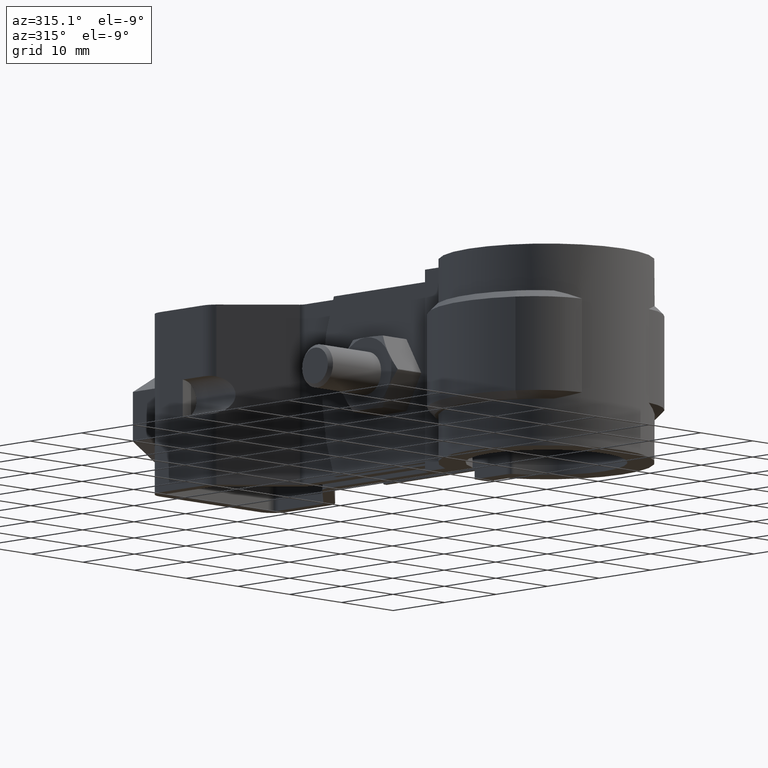
[diagram: clean part render]
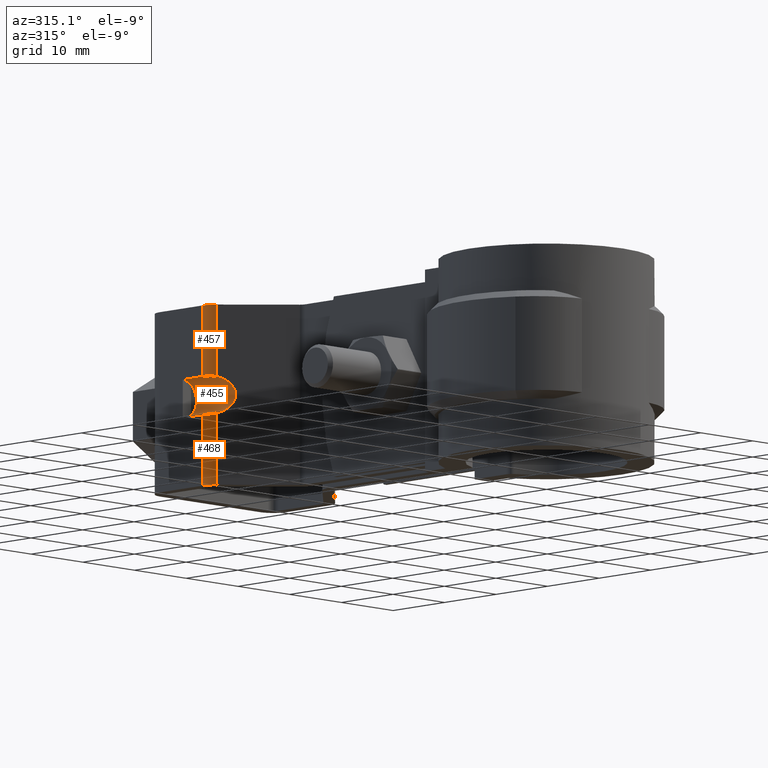
[diagram: same view with one multi-face feature highlighted, each face labeled with its STEP entity id]
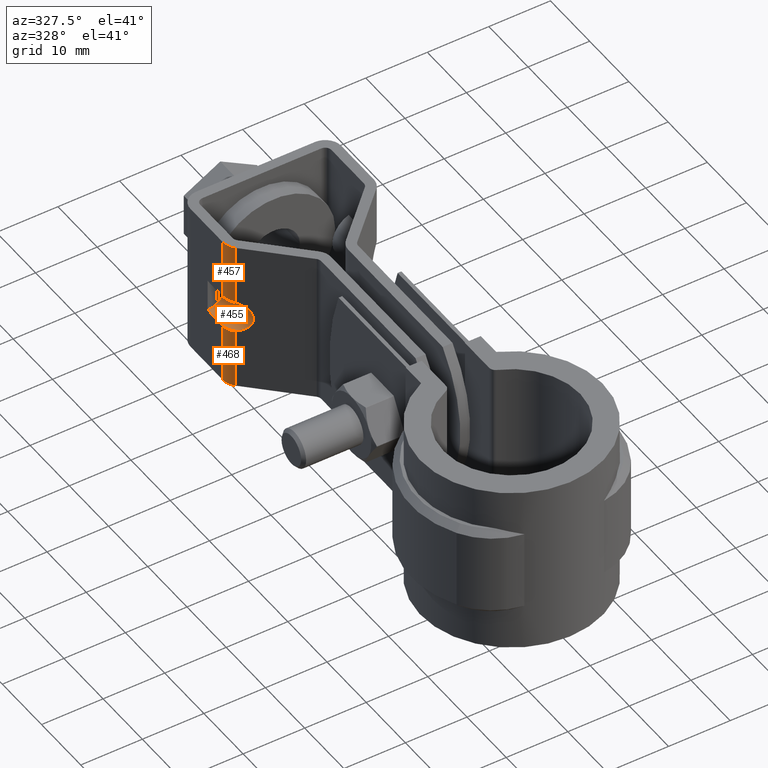
[diagram: same view with one multi-face feature highlighted, each face labeled with its STEP entity id]
A machine part, auxiliary view. The highlighted faces form ONE feature: a constant-radius fillet chain: 3 tangent blend faces with common blend radius 2.61667 mm. The faces share edges in the B-rep.
A second angle (auxiliary view) of the same feature is appended — it is thin or edge-on in the first view.
Their STEP definitions:
[1] entity #455 (Cylinder):
#455 = ADVANCED_FACE( '', ( #815 ), #816, .F. );
#815 = FACE_OUTER_BOUND( '', #1644, .T. );
#816 = CYLINDRICAL_SURFACE( '', #1645, 2.64999999999997 );
#1644 = EDGE_LOOP( '', ( #3950, #3951, #3952, #3953, #3954, #3955, #3956, #3957 ) );
#1645 = AXIS2_PLACEMENT_3D( '', #3958, #3959, #3960 );
#3950 = ORIENTED_EDGE( '', *, *, #4907, .T. );
#3951 = ORIENTED_EDGE( '', *, *, #4908, .T. );
#3952 = ORIENTED_EDGE( '', *, *, #4909, .T. );
#3953 = ORIENTED_EDGE( '', *, *, #4910, .F. );
#3954 = ORIENTED_EDGE( '', *, *, #4905, .F. );
#3955 = ORIENTED_EDGE( '', *, *, #4911, .F. );
#3956 = ORIENTED_EDGE( '', *, *, #4912, .F. );
#3957 = ORIENTED_EDGE( '', *, *, #4913, .T. );
#3958 = CARTESIAN_POINT( '', ( -12.2499999998243, 48.2980146710182, -12.4999999884850 ) );
#3959 = DIRECTION( '', ( -8.53589041478956E-013, -1.00000000000000, -9.34504695848685E-011 ) );
#3960 = DIRECTION( '', ( -7.44484596428682E-013, -9.34504695848679E-011, 1.00000000000000 ) );
#4905 = EDGE_CURVE( '', #5774, #5776, #5777, .T. );
#4907 = EDGE_CURVE( '', #5779, #5780, #5781, .T. );
#4908 = EDGE_CURVE( '', #5780, #5782, #5783, .T. );
#4909 = EDGE_CURVE( '', #5782, #5784, #5785, .T. );
#4910 = EDGE_CURVE( '', #5776, #5784, #5786, .T. );
#4911 = EDGE_CURVE( '', #5787, #5774, #5788, .T. );
#4912 = EDGE_CURVE( '', #5789, #5787, #5790, .T. );
#4913 = EDGE_CURVE( '', #5789, #5779, #5791, .T. );
#5774 = VERTEX_POINT( '', #8309 );
#5776 = VERTEX_POINT( '', #8312 );
#5777 = CIRCLE( '', #8313, 2.64999999999997 );
#5779 = VERTEX_POINT( '', #8316 );
#5780 = VERTEX_POINT( '', #8317 );
#5781 = ELLIPSE( '', #8318, 3.70224472166266, 2.64999999999997 );
#5782 = VERTEX_POINT( '', #8319 );
#5783 = B_SPLINE_CURVE_WITH_KNOTS( '', 3, ( #8320, #8321, #8322, #8323, #8324, #8325, #8326, #8327 ), .UNSPECIFIED., .F., .F., ( 4, 2, 2, 4 ), ( 1.73472347597681E-018, 0.000516787748161293, 0.00103357549632258, 0.00206715099264518 ), .UNSPECIFIED. );
#5784 = VERTEX_POINT( '', #8328 );
#5785 = LINE( '', #8329, #8330 );
#5786 = CIRCLE( '', #8331, 2.64999999999997 );
#5787 = VERTEX_POINT( '', #8332 );
#5788 = CIRCLE( '', #8333, 2.64999999999997 );
#5789 = VERTEX_POINT( '', #8334 );
#5790 = LINE( '', #8335, #8336 );
#5791 = B_SPLINE_CURVE_WITH_KNOTS( '', 3, ( #8337, #8338, #8339, #8340, #8341, #8342, #8343, #8344, #8345, #8346 ), .UNSPECIFIED., .F., .F., ( 4, 2, 2, 2, 4 ), ( 0.000000000000000, 0.000517346174284566, 0.00103469234856913, 0.00155203852285370, 0.00206938469713826 ), .UNSPECIFIED. );
#8309 = CARTESIAN_POINT( '', ( -10.6499999998142, 58.2980146712143, -14.6124630049771 ) );
#8312 = CARTESIAN_POINT( '', ( -10.6499999998174, 58.2980146708194, -10.3875369701215 ) );
#8313 = AXIS2_PLACEMENT_3D( '', #9282, #9283, #9284 );
#8316 = CARTESIAN_POINT( '', ( -11.4656419721980, 52.5327873626204, -15.0312610343869 ) );
#8317 = CARTESIAN_POINT( '', ( -11.4656419722019, 52.5327873621473, -9.96873894179046 ) );
#8318 = AXIS2_PLACEMENT_3D( '', #9286, #9287, #9288 );
#8319 = CARTESIAN_POINT( '', ( -12.2499999998211, 54.3938204698849, -9.84999998791540 ) );
#8320 = CARTESIAN_POINT( '', ( -11.4656419722019, 52.5327873621473, -9.96873894179044 ) );
#8321 = CARTESIAN_POINT( '', ( -11.5880007592536, 52.6521617830155, -9.93082380970943 ) );
#8322 = CARTESIAN_POINT( '', ( -11.6979909724040, 52.7828607483827, -9.90626131825559 ) );
#8323 = CARTESIAN_POINT( '', ( -11.8919852998658, 53.0660553692449, -9.87244984993833 ) );
#8324 = CARTESIAN_POINT( '', ( -11.9765770455680, 53.2203805677772, -9.86327472014186 ) );
#8325 = CARTESIAN_POINT( '', ( -12.1789956023336, 53.6982134996160, -9.84749562863240 ) );
#8326 = CARTESIAN_POINT( '', ( -12.2499999998214, 54.0442786278377, -9.84999998794807 ) );
#8327 = CARTESIAN_POINT( '', ( -12.2499999998211, 54.3938204698849, -9.84999998791540 ) );
#8328 = CARTESIAN_POINT( '', ( -12.2499999998178, 58.2980146707706, -9.84999998755055 ) );
#8329 = CARTESIAN_POINT( '', ( -12.2499999998263, 48.2980146707706, -9.84999998848506 ) );
#8330 = VECTOR( '', #9289, 1000.00000000000 );
#8331 = AXIS2_PLACEMENT_3D( '', #9290, #9291, #9292 );
#8332 = CARTESIAN_POINT( '', ( -12.2499999998137, 58.2980146712659, -15.1499999875505 ) );
#8333 = AXIS2_PLACEMENT_3D( '', #9293, #9294, #9295 );
#8334 = CARTESIAN_POINT( '', ( -12.2499999998171, 54.3938204703802, -15.1499999879153 ) );
#8335 = CARTESIAN_POINT( '', ( -12.2499999998223, 48.2980146712658, -15.1499999884850 ) );
#8336 = VECTOR( '', #9296, 1000.00000000000 );
#8337 = CARTESIAN_POINT( '', ( -12.2499999998171, 54.3938204703802, -15.1499999879153 ) );
#8338 = CARTESIAN_POINT( '', ( -12.2499999998172, 54.2189304061320, -15.1499999879317 ) );
#8339 = CARTESIAN_POINT( '', ( -12.2325330352256, 54.0469879982264, -15.1501636839525 ) );
#8340 = CARTESIAN_POINT( '', ( -12.1640563522652, 53.7087728082181, -15.1488273511570 ) );
#8341 = CARTESIAN_POINT( '', ( -12.1121297115208, 53.5406419599359, -15.1472759408597 ) );
#8342 = CARTESIAN_POINT( '', ( -11.9772119359029, 53.2216085047010, -15.1367906242331 ) );
#8343 = CARTESIAN_POINT( '', ( -11.8947254702792, 53.0705972853488, -15.1279277715214 ) );
#8344 = CARTESIAN_POINT( '', ( -11.7003962034676, 52.7858442755270, -15.0942551978655 ) );
#8345 = CARTESIAN_POINT( '', ( -11.5880224296767, 52.6521829253748, -15.0691828814282 ) );
#8346 = CARTESIAN_POINT( '', ( -11.4656419721980, 52.5327873626204, -15.0312610343869 ) );
#9282 = CARTESIAN_POINT( '', ( -12.2499999998157, 58.2980146710182, -12.4999999875505 ) );
#9283 = DIRECTION( '', ( -8.53589041478956E-013, -1.00000000000000, -9.34504695848685E-011 ) );
#9284 = DIRECTION( '', ( -7.66086813299337E-013, -9.34504695848679E-011, 1.00000000000000 ) );
#9286 = CARTESIAN_POINT( '', ( -12.2499999998200, 53.2980146710184, -12.4999999880178 ) );
#9287 = DIRECTION( '', ( -0.698323835531110, -0.715781964517911, -6.74247207665490E-011 ) );
#9288 = DIRECTION( '', ( -0.715781964517911, 0.698323835531110, 6.47107662638313E-011 ) );
#9289 = DIRECTION( '', ( 8.53589041478956E-013, 1.00000000000000, 9.34504695848685E-011 ) );
#9290 = CARTESIAN_POINT( '', ( -12.2499999998157, 58.2980146710182, -12.4999999875505 ) );
#9291 = DIRECTION( '', ( -8.53589041478956E-013, -1.00000000000000, -9.34504695848685E-011 ) );
#9292 = DIRECTION( '', ( -7.66086813299337E-013, -9.34504695848679E-011, 1.00000000000000 ) );
#9293 = CARTESIAN_POINT( '', ( -12.2499999998157, 58.2980146710182, -12.4999999875505 ) );
#9294 = DIRECTION( '', ( -8.53589041478956E-013, -1.00000000000000, -9.34504695848685E-011 ) );
#9295 = DIRECTION( '', ( -7.66086813299337E-013, -9.34504695848679E-011, 1.00000000000000 ) );
#9296 = DIRECTION( '', ( 8.53589041478956E-013, 1.00000000000000, 9.34504695848685E-011 ) );
[2] entity #457 (Cylinder):
#457 = ADVANCED_FACE( '', ( #819 ), #820, .T. );
#819 = FACE_OUTER_BOUND( '', #1648, .T. );
#820 = CYLINDRICAL_SURFACE( '', #1649, 2.59999999999999 );
#1648 = EDGE_LOOP( '', ( #3968, #3969, #3970, #3971 ) );
#1649 = AXIS2_PLACEMENT_3D( '', #3972, #3973, #3974 );
#3968 = ORIENTED_EDGE( '', *, *, #4916, .T. );
#3969 = ORIENTED_EDGE( '', *, *, #4908, .F. );
#3970 = ORIENTED_EDGE( '', *, *, #4917, .F. );
#3971 = ORIENTED_EDGE( '', *, *, #4835, .T. );
#3972 = CARTESIAN_POINT( '', ( -9.64999999982868, 54.3938204689623, 1.20866094910355E-008 ) );
#3973 = DIRECTION( '', ( -7.65540480244708E-013, -9.34504695848679E-011, 1.00000000000000 ) );
#3974 = DIRECTION( '', ( 8.53589041478956E-013, 1.00000000000000, 9.34504695848685E-011 ) );
#4835 = EDGE_CURVE( '', #5659, #5657, #5660, .T. );
#4908 = EDGE_CURVE( '', #5780, #5782, #5783, .T. );
#4916 = EDGE_CURVE( '', #5657, #5782, #5794, .T. );
#4917 = EDGE_CURVE( '', #5659, #5780, #5795, .T. );
#5657 = VERTEX_POINT( '', #8115 );
#5659 = VERTEX_POINT( '', #8118 );
#5660 = CIRCLE( '', #8119, 2.59999999999999 );
#5780 = VERTEX_POINT( '', #8317 );
#5782 = VERTEX_POINT( '', #8319 );
#5783 = B_SPLINE_CURVE_WITH_KNOTS( '', 3, ( #8320, #8321, #8322, #8323, #8324, #8325, #8326, #8327 ), .UNSPECIFIED., .F., .F., ( 4, 2, 2, 4 ), ( 1.73472347597681E-018, 0.000516787748161293, 0.00103357549632258, 0.00206715099264518 ), .UNSPECIFIED. );
#5794 = LINE( '', #8351, #8352 );
#5795 = LINE( '', #8353, #8354 );
#8115 = CARTESIAN_POINT( '', ( -12.2499999998287, 54.3938204689645, 1.20846249673789E-008 ) );
#8118 = CARTESIAN_POINT( '', ( -11.4656419722096, 52.5327873612157, 1.19113052754471E-008 ) );
#8119 = AXIS2_PLACEMENT_3D( '', #9172, #9173, #9174 );
#8317 = CARTESIAN_POINT( '', ( -11.4656419722019, 52.5327873621473, -9.96873894179046 ) );
#8319 = CARTESIAN_POINT( '', ( -12.2499999998211, 54.3938204698849, -9.84999998791540 ) );
#8320 = CARTESIAN_POINT( '', ( -11.4656419722019, 52.5327873621473, -9.96873894179044 ) );
#8321 = CARTESIAN_POINT( '', ( -11.5880007592536, 52.6521617830155, -9.93082380970943 ) );
#8322 = CARTESIAN_POINT( '', ( -11.6979909724040, 52.7828607483827, -9.90626131825559 ) );
#8323 = CARTESIAN_POINT( '', ( -11.8919852998658, 53.0660553692449, -9.87244984993833 ) );
#8324 = CARTESIAN_POINT( '', ( -11.9765770455680, 53.2203805677772, -9.86327472014186 ) );
#8325 = CARTESIAN_POINT( '', ( -12.1789956023336, 53.6982134996160, -9.84749562863240 ) );
#8326 = CARTESIAN_POINT( '', ( -12.2499999998214, 54.0442786278377, -9.84999998794807 ) );
#8327 = CARTESIAN_POINT( '', ( -12.2499999998211, 54.3938204698849, -9.84999998791540 ) );
#8351 = CARTESIAN_POINT( '', ( -12.2499999998287, 54.3938204689645, 1.20846249673789E-008 ) );
#8352 = VECTOR( '', #9299, 1000.00000000000 );
#8353 = CARTESIAN_POINT( '', ( -11.4656419722096, 52.5327873612157, 1.19113052754471E-008 ) );
#8354 = VECTOR( '', #9300, 1000.00000000000 );
#9172 = CARTESIAN_POINT( '', ( -9.64999999982868, 54.3938204689623, 1.20866094910355E-008 ) );
#9173 = DIRECTION( '', ( 7.65540480244704E-013, 9.34504695848679E-011, -1.00000000000000 ) );
#9174 = DIRECTION( '', ( -0.698323835531113, -0.715781964517908, -6.74247558689965E-011 ) );
#9299 = DIRECTION( '', ( 7.65540480244708E-013, 9.34504695848679E-011, -1.00000000000000 ) );
#9300 = DIRECTION( '', ( 7.65540480244708E-013, 9.34504695848679E-011, -1.00000000000000 ) );
[3] entity #468 (Cylinder):
#468 = ADVANCED_FACE( '', ( #844 ), #845, .T. );
#844 = FACE_OUTER_BOUND( '', #1673, .T. );
#845 = CYLINDRICAL_SURFACE( '', #1674, 2.59999999999999 );
#1673 = EDGE_LOOP( '', ( #4081, #4082, #4083, #4084 ) );
#1674 = AXIS2_PLACEMENT_3D( '', #4085, #4086, #4087 );
#4081 = ORIENTED_EDGE( '', *, *, #4941, .F. );
#4082 = ORIENTED_EDGE( '', *, *, #4913, .F. );
#4083 = ORIENTED_EDGE( '', *, *, #4940, .T. );
#4084 = ORIENTED_EDGE( '', *, *, #4933, .F. );
#4085 = CARTESIAN_POINT( '', ( -9.64999999982868, 54.3938204689623, 1.20866094910355E-008 ) );
#4086 = DIRECTION( '', ( -7.65540480244708E-013, -9.34504695848679E-011, 1.00000000000000 ) );
#4087 = DIRECTION( '', ( 8.53589041478956E-013, 1.00000000000000, 9.34504695848685E-011 ) );
#4913 = EDGE_CURVE( '', #5789, #5779, #5791, .T. );
#4933 = EDGE_CURVE( '', #5816, #5818, #5819, .T. );
#4940 = EDGE_CURVE( '', #5789, #5818, #5829, .T. );
#4941 = EDGE_CURVE( '', #5779, #5816, #5830, .T. );
#5779 = VERTEX_POINT( '', #8316 );
#5789 = VERTEX_POINT( '', #8334 );
#5791 = B_SPLINE_CURVE_WITH_KNOTS( '', 3, ( #8337, #8338, #8339, #8340, #8341, #8342, #8343, #8344, #8345, #8346 ), .UNSPECIFIED., .F., .F., ( 4, 2, 2, 2, 4 ), ( 0.000000000000000, 0.000517346174284566, 0.00103469234856913, 0.00155203852285370, 0.00206938469713826 ), .UNSPECIFIED. );
#5816 = VERTEX_POINT( '', #8385 );
#5818 = VERTEX_POINT( '', #8388 );
#5819 = CIRCLE( '', #8389, 2.59999999999999 );
#5829 = LINE( '', #8402, #8403 );
#5830 = LINE( '', #8404, #8405 );
#8316 = CARTESIAN_POINT( '', ( -11.4656419721980, 52.5327873626204, -15.0312610343869 ) );
#8334 = CARTESIAN_POINT( '', ( -12.2499999998171, 54.3938204703802, -15.1499999879153 ) );
#8337 = CARTESIAN_POINT( '', ( -12.2499999998171, 54.3938204703802, -15.1499999879153 ) );
#8338 = CARTESIAN_POINT( '', ( -12.2499999998172, 54.2189304061320, -15.1499999879317 ) );
#8339 = CARTESIAN_POINT( '', ( -12.2325330352256, 54.0469879982264, -15.1501636839525 ) );
#8340 = CARTESIAN_POINT( '', ( -12.1640563522652, 53.7087728082181, -15.1488273511570 ) );
#8341 = CARTESIAN_POINT( '', ( -12.1121297115208, 53.5406419599359, -15.1472759408597 ) );
#8342 = CARTESIAN_POINT( '', ( -11.9772119359029, 53.2216085047010, -15.1367906242331 ) );
#8343 = CARTESIAN_POINT( '', ( -11.8947254702792, 53.0705972853488, -15.1279277715214 ) );
#8344 = CARTESIAN_POINT( '', ( -11.7003962034676, 52.7858442755270, -15.0942551978655 ) );
#8345 = CARTESIAN_POINT( '', ( -11.5880224296767, 52.6521829253748, -15.0691828814282 ) );
#8346 = CARTESIAN_POINT( '', ( -11.4656419721980, 52.5327873626204, -15.0312610343869 ) );
#8385 = CARTESIAN_POINT( '', ( -11.4656419721904, 52.5327873635520, -24.9999999880887 ) );
#8388 = CARTESIAN_POINT( '', ( -12.2499999998095, 54.3938204713008, -24.9999999879154 ) );
#8389 = AXIS2_PLACEMENT_3D( '', #9324, #9325, #9326 );
#8402 = CARTESIAN_POINT( '', ( -12.2499999998287, 54.3938204689645, 1.20846249673789E-008 ) );
#8403 = VECTOR( '', #9339, 1000.00000000000 );
#8404 = CARTESIAN_POINT( '', ( -11.4656419722096, 52.5327873612157, 1.19113052754471E-008 ) );
#8405 = VECTOR( '', #9340, 1000.00000000000 );
#9324 = CARTESIAN_POINT( '', ( -9.64999999980954, 54.3938204712985, -24.9999999879134 ) );
#9325 = DIRECTION( '', ( 7.65540480244704E-013, 9.34504695848679E-011, -1.00000000000000 ) );
#9326 = DIRECTION( '', ( -0.698323835531113, -0.715781964517908, -6.74247558689965E-011 ) );
#9339 = DIRECTION( '', ( 7.65540480244708E-013, 9.34504695848679E-011, -1.00000000000000 ) );
#9340 = DIRECTION( '', ( 7.65540480244708E-013, 9.34504695848679E-011, -1.00000000000000 ) );